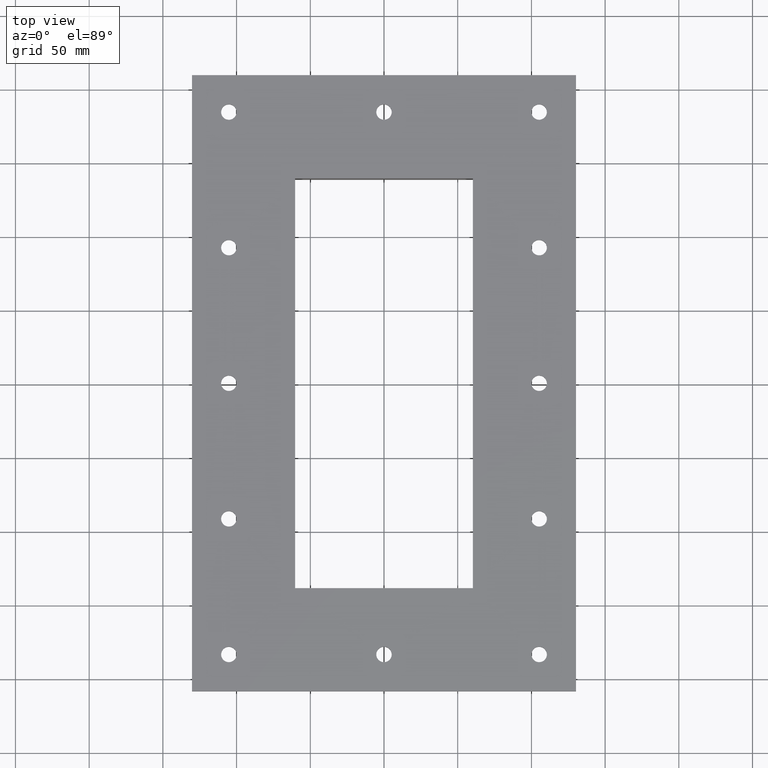
[diagram: clean part render]
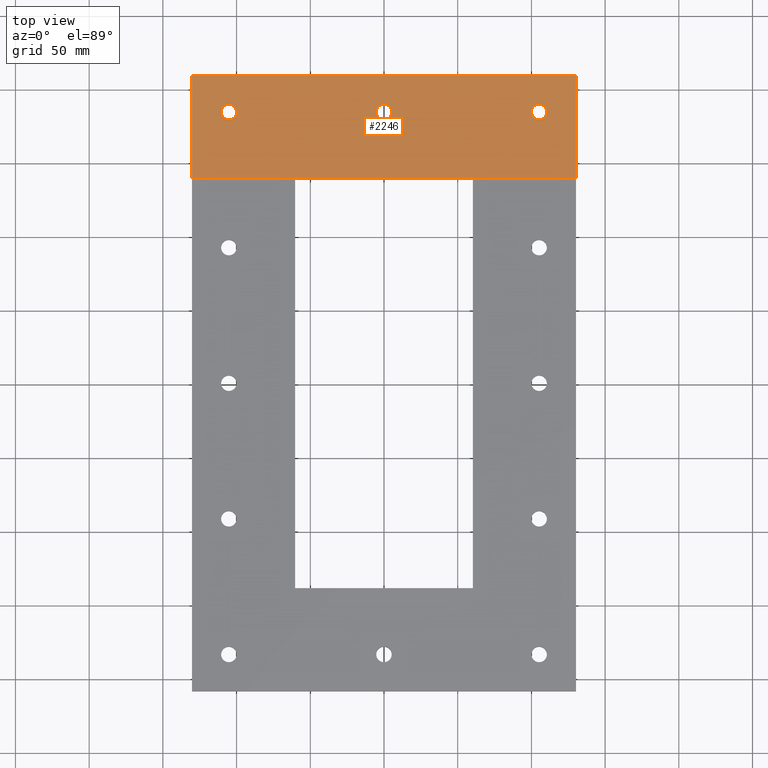
[diagram: same view with one face highlighted and labeled with its STEP entity id]
A machine part, top view. The second image highlights one B-rep face of the part: STEP entity #2246.
In plain terms, the highlighted planar face has unit normal (0, 0, 1).
Its self-contained STEP definition (entity closure, byte-faithful):
#214=FACE_BOUND('',#585,.T.);
#215=FACE_BOUND('',#586,.T.);
#216=FACE_BOUND('',#587,.T.);
#306=CIRCLE('',#2597,5.25);
#307=CIRCLE('',#2598,5.25);
#308=CIRCLE('',#2599,5.25);
#420=FACE_OUTER_BOUND('',#584,.T.);
#584=EDGE_LOOP('',(#1818,#1819,#1820,#1821));
#585=EDGE_LOOP('',(#1822));
#586=EDGE_LOOP('',(#1823));
#587=EDGE_LOOP('',(#1824));
#783=LINE('',#3714,#957);
#784=LINE('',#3716,#958);
#785=LINE('',#3718,#959);
#786=LINE('',#3719,#960);
#957=VECTOR('',#3058,10.);
#958=VECTOR('',#3059,10.);
#959=VECTOR('',#3060,10.);
#960=VECTOR('',#3061,10.);
#1134=VERTEX_POINT('',#3712);
#1135=VERTEX_POINT('',#3713);
#1136=VERTEX_POINT('',#3715);
#1137=VERTEX_POINT('',#3717);
#1138=VERTEX_POINT('',#3720);
#1139=VERTEX_POINT('',#3722);
#1140=VERTEX_POINT('',#3724);
#1380=EDGE_CURVE('',#1134,#1135,#783,.T.);
#1381=EDGE_CURVE('',#1135,#1136,#784,.T.);
#1382=EDGE_CURVE('',#1136,#1137,#785,.T.);
#1383=EDGE_CURVE('',#1137,#1134,#786,.T.);
#1384=EDGE_CURVE('',#1138,#1138,#306,.T.);
#1385=EDGE_CURVE('',#1139,#1139,#307,.T.);
#1386=EDGE_CURVE('',#1140,#1140,#308,.T.);
#1818=ORIENTED_EDGE('',*,*,#1380,.T.);
#1819=ORIENTED_EDGE('',*,*,#1381,.T.);
#1820=ORIENTED_EDGE('',*,*,#1382,.T.);
#1821=ORIENTED_EDGE('',*,*,#1383,.T.);
#1822=ORIENTED_EDGE('',*,*,#1384,.T.);
#1823=ORIENTED_EDGE('',*,*,#1385,.T.);
#1824=ORIENTED_EDGE('',*,*,#1386,.T.);
#2151=PLANE('',#2596);
#2246=ADVANCED_FACE('',(#420,#214,#215,#216),#2151,.T.);
#2596=AXIS2_PLACEMENT_3D('',#3711,#3056,#3057);
#2597=AXIS2_PLACEMENT_3D('',#3721,#3062,#3063);
#2598=AXIS2_PLACEMENT_3D('',#3723,#3064,#3065);
#2599=AXIS2_PLACEMENT_3D('',#3725,#3066,#3067);
#3056=DIRECTION('center_axis',(0.,0.,1.));
#3057=DIRECTION('ref_axis',(1.,0.,0.));
#3058=DIRECTION('',(-1.27489725315807E-16,1.,0.));
#3059=DIRECTION('',(-1.,-2.72761126971248E-16,0.));
#3060=DIRECTION('',(2.54979450631615E-16,-1.,0.));
#3061=DIRECTION('',(1.,2.94831010688838E-16,0.));
#3062=DIRECTION('center_axis',(0.,0.,-1.));
#3063=DIRECTION('ref_axis',(1.,0.,0.));
#3064=DIRECTION('center_axis',(0.,0.,-1.));
#3065=DIRECTION('ref_axis',(1.,0.,0.));
#3066=DIRECTION('center_axis',(0.,0.,-1.));
#3067=DIRECTION('ref_axis',(1.,0.,0.));
#3711=CARTESIAN_POINT('Origin',(0.,4.44089209850063E-14,0.));
#3712=CARTESIAN_POINT('',(130.25,139.,0.));
#3713=CARTESIAN_POINT('',(130.25,209.,0.));
#3714=CARTESIAN_POINT('',(130.25,-209.,0.));
#3715=CARTESIAN_POINT('',(-130.25,209.,0.));
#3716=CARTESIAN_POINT('',(130.25,209.,0.));
#3717=CARTESIAN_POINT('',(-130.25,139.,0.));
#3718=CARTESIAN_POINT('',(-130.25,209.,0.));
#3719=CARTESIAN_POINT('',(-30.125,139.,0.));
#3720=CARTESIAN_POINT('',(-110.5,184.,0.));
#3721=CARTESIAN_POINT('Origin',(-105.25,184.,0.));
#3722=CARTESIAN_POINT('',(100.,184.,0.));
#3723=CARTESIAN_POINT('Origin',(105.25,184.,0.));
#3724=CARTESIAN_POINT('',(-5.24999999999975,184.,0.));
#3725=CARTESIAN_POINT('Origin',(2.48689957516035E-13,184.,0.));